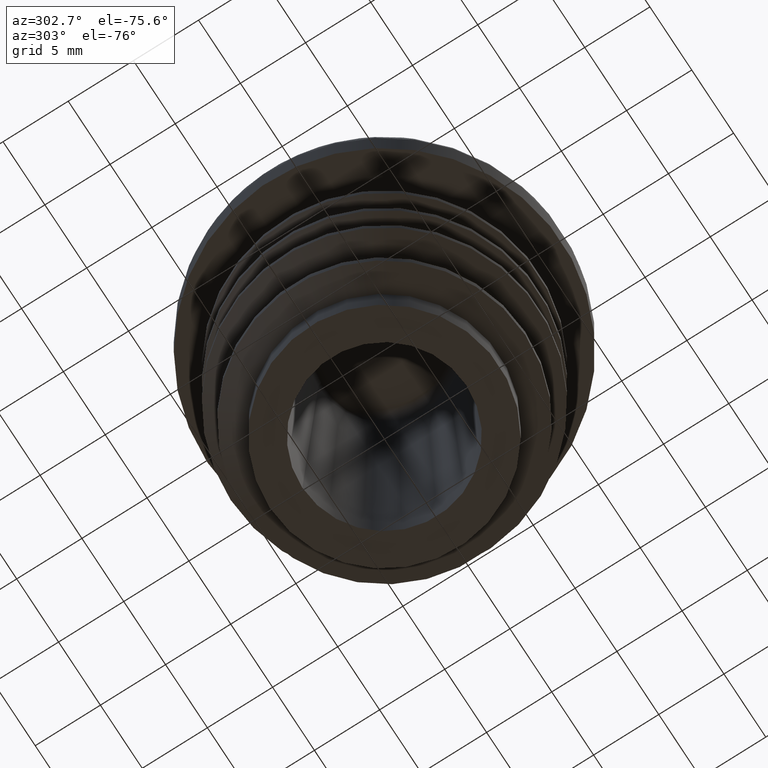
[diagram: clean part render]
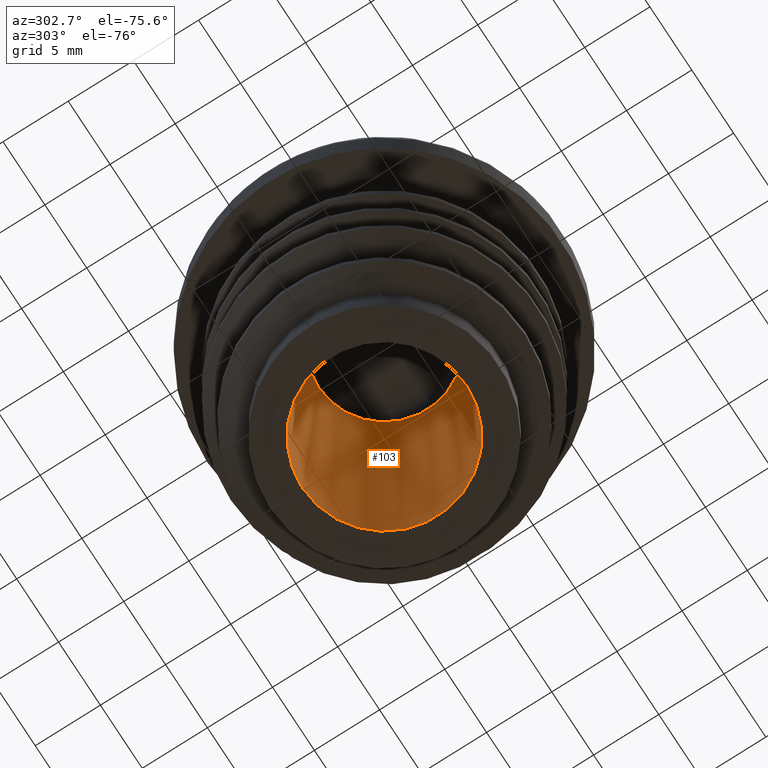
[diagram: same view with one face highlighted and labeled with its STEP entity id]
A machine part, auxiliary view. The second image highlights one B-rep face of the part: STEP entity #103.
In plain terms, the highlighted conical surface has half-angle 3 deg.
Its self-contained STEP definition (entity closure, byte-faithful):
#103 = ADVANCED_FACE( '', ( #245, #246 ), #247, .F. );
#245 = FACE_BOUND( '', #499, .T. );
#246 = FACE_OUTER_BOUND( '', #500, .T. );
#247 = CONICAL_SURFACE( '', #501, 6.30000000000000, 0.0523598775598300 );
#499 = EDGE_LOOP( '', ( #988 ) );
#500 = EDGE_LOOP( '', ( #989 ) );
#501 = AXIS2_PLACEMENT_3D( '', #990, #991, #992 );
#988 = ORIENTED_EDGE( '', *, *, #1490, .F. );
#989 = ORIENTED_EDGE( '', *, *, #1489, .T. );
#990 = CARTESIAN_POINT( '', ( 0.000000000000000, -1.34706698920462E-015, 0.000000000000000 ) );
#991 = DIRECTION( '', ( 0.000000000000000, -6.12303176911189E-017, -1.00000000000000 ) );
#992 = DIRECTION( '', ( 0.000000000000000, 1.00000000000000, -6.12303176911189E-017 ) );
#1489 = EDGE_CURVE( '', #1730, #1730, #1731, .T. );
#1490 = EDGE_CURVE( '', #1732, #1732, #1733, .T. );
#1730 = VERTEX_POINT( '', #2408 );
#1731 = CIRCLE( '', #2409, 6.30000000000000 );
#1732 = VERTEX_POINT( '', #2410 );
#1733 = CIRCLE( '', #2411, 5.06567437560518 );
#2408 = CARTESIAN_POINT( '', ( 0.000000000000000, 6.30000000000000, -3.85751001454049E-016 ) );
#2409 = AXIS2_PLACEMENT_3D( '', #3000, #3001, #3002 );
#2410 = CARTESIAN_POINT( '', ( 0.000000000000000, 5.06567437560518, 23.5523359562429 ) );
#2411 = AXIS2_PLACEMENT_3D( '', #3003, #3004, #3005 );
#3000 = CARTESIAN_POINT( '', ( 0.000000000000000, -1.34706698920462E-015, 0.000000000000000 ) );
#3001 = DIRECTION( '', ( 0.000000000000000, -6.12303176911189E-017, -1.00000000000000 ) );
#3002 = DIRECTION( '', ( 0.000000000000000, 1.00000000000000, -6.12303176911189E-017 ) );
#3003 = CARTESIAN_POINT( '', ( 0.000000000000000, 9.50500237641014E-017, 23.5523359562429 ) );
#3004 = DIRECTION( '', ( 0.000000000000000, -6.12303176911189E-017, -1.00000000000000 ) );
#3005 = DIRECTION( '', ( 0.000000000000000, 1.00000000000000, -6.12303176911189E-017 ) );